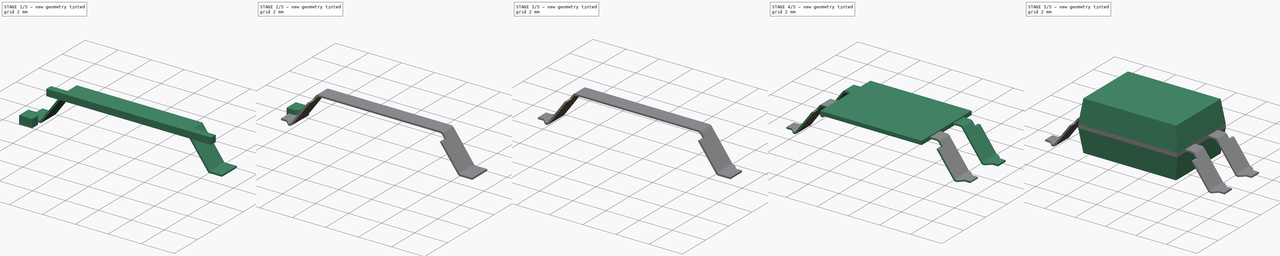
[diagram: build sequence overview — one tinted view per stage of 5, left to right]
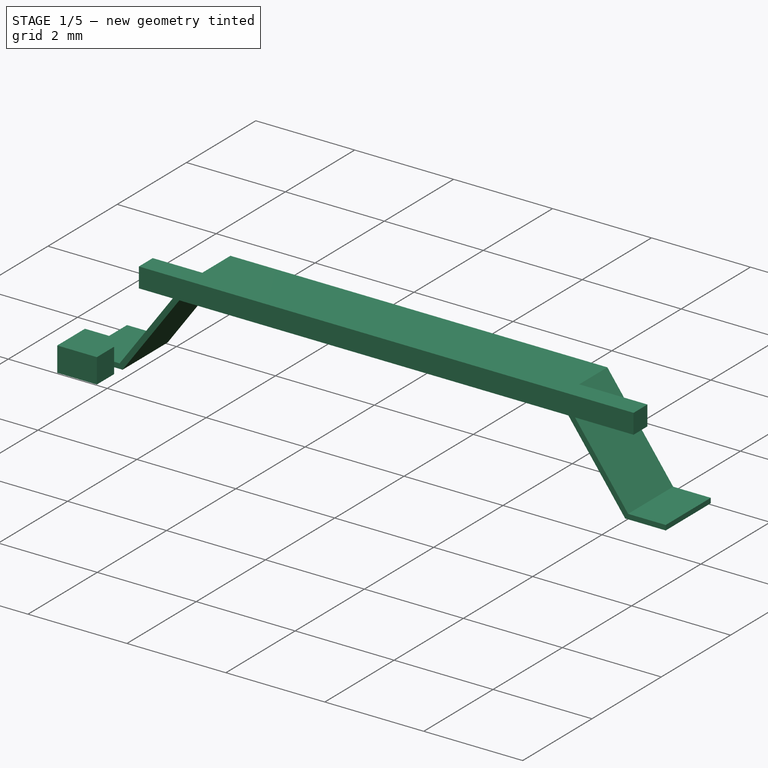
[diagram: stage 1 of 5 — iso view after this stage's code; geometry added in this stage tinted green]
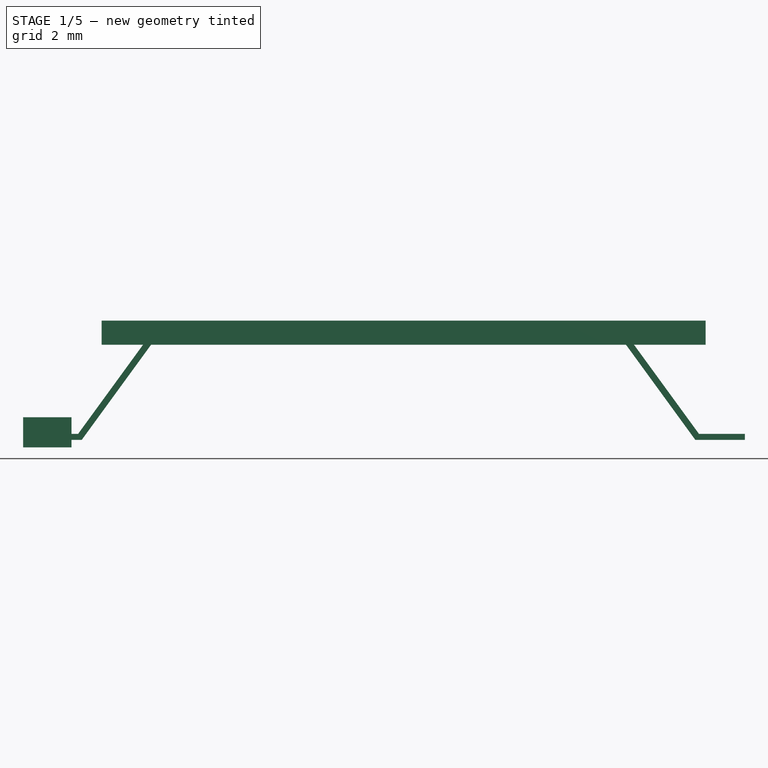
[diagram: stage 1 of 5 — front view after this stage's code; geometry added in this stage tinted green]
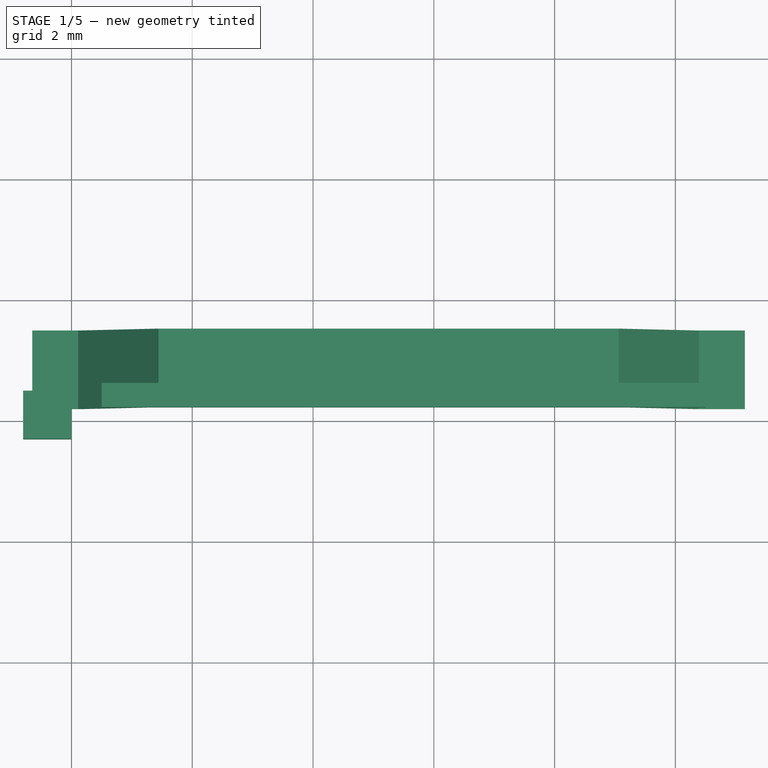
[diagram: stage 1 of 5 — top view after this stage's code; geometry added in this stage tinted green]
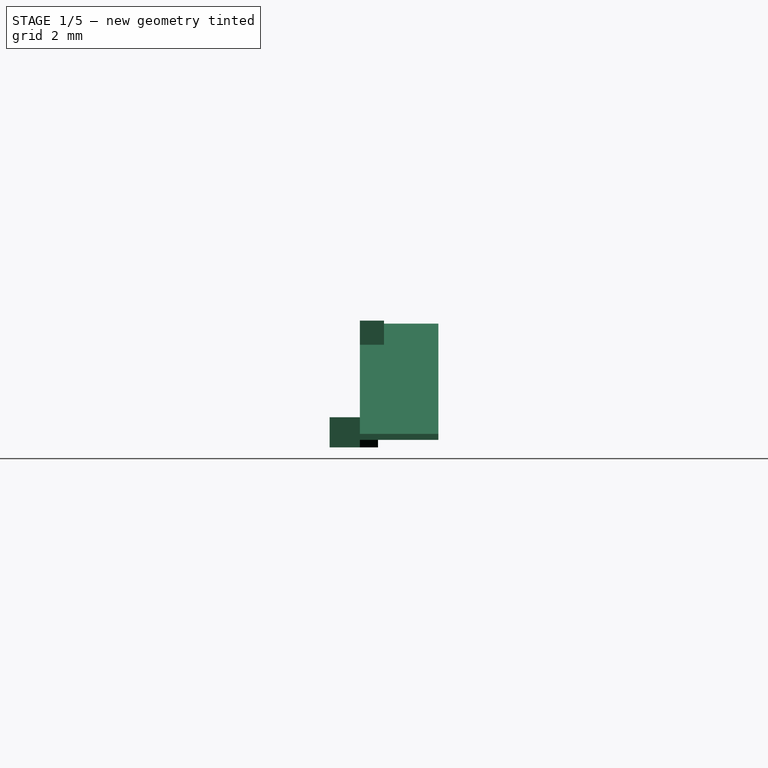
[diagram: stage 1 of 5 — right view after this stage's code; geometry added in this stage tinted green]
FCSTD DOCUMENT  (FreeCAD 0.18.4R)
Label: Wurth-140816144100
License: All rights reserved
LicenseURL: http://en.wikipedia.org/wiki/All_rights_reserved
objects: Part::Cut×6, Part::Mirroring×4, Sketcher::SketchObject×3, Part::Extrusion×2, Part::MultiFuse×2, Part::Box×2, Part::Loft×1, Part::Fillet×1, Part::Chamfer×1
note: 22 computed .brp shape members not serialized (recipe doc carries the construction recipe); baked Part::Feature solids carry a one-line shape summary decoded from their .brp

FEATURE [Sketcher::SketchObject] Sketch002
  Placement = pos=(0,0.2,0) rot=(1,0,0;1.5708rad)
  sketch-geometry (12):
    g0: LineSegment StartX=-2.65 StartY=-1.875 StartZ=0 EndX=-1.83 EndY=-1.875 EndZ=0
    g1: LineSegment StartX=-1.83 StartY=-1.875 StartZ=0 EndX=-0.5 EndY=-0.05 EndZ=0
    g2: LineSegment StartX=-0.5 StartY=-0.05 StartZ=0 EndX=7 EndY=-0.05 EndZ=0
    g3: LineSegment StartX=7 StartY=-0.05 StartZ=0 EndX=8.33 EndY=-1.875 EndZ=0
    g4: LineSegment StartX=8.33 StartY=-1.875 StartZ=0 EndX=9.15 EndY=-1.875 EndZ=0
    g5: LineSegment StartX=9.15 StartY=-1.875 StartZ=0 EndX=9.15 EndY=-1.775 EndZ=0
    g6: LineSegment StartX=9.15 StartY=-1.775 StartZ=0 EndX=8.39 EndY=-1.775 EndZ=0
    g7: LineSegment StartX=8.39 StartY=-1.775 StartZ=0 EndX=7.06 EndY=0.05 EndZ=0
    g8: LineSegment StartX=7.06 StartY=0.05 StartZ=0 EndX=-0.56 EndY=0.05 EndZ=0
    g9: LineSegment StartX=-0.56 StartY=0.05 StartZ=0 EndX=-1.89 EndY=-1.775 EndZ=0
    g10: LineSegment StartX=-1.89 StartY=-1.775 StartZ=0 EndX=-2.65 EndY=-1.775 EndZ=0
    g11: LineSegment StartX=-2.65 StartY=-1.775 StartZ=0 EndX=-2.65 EndY=-1.875 EndZ=0
  constraints (32):
    c: Coincident(g0,g1)
    c: Coincident(g1,g2)
    c: Coincident(g2,g3)
    c: Coincident(g3,g4)
    c: Coincident(g4,g5)
    c: Coincident(g5,g6)
    c: Coincident(g6,g7)
    c: Coincident(g7,g8)
    c: Coincident(g8,g9)
    c: Coincident(g9,g10)
    c: Coincident(g10,g11)
    c: Coincident(g11,g0)
    c: Vertical(g11)
    c: Horizontal(g6)
    c: Horizontal(g4)
    c: Horizontal(g8)
    c: Horizontal(g10)
    c: Horizontal(g0)
    c: DistanceX(g8,g8) = 7.62
    c: Parallel(g9,g1)
    c: Parallel(g3,g7)
    c: DistanceY(g5,g5) = 0.1
    c: DistanceY(g11,g11) = 0.1
    c: DistanceY(g3,g0) = 0
    c: DistanceX(g0,g4) = 11.8
    c: DistanceX(g8,g-1) = 0.56
    c: Equal(g6,g10)
    c: Equal(g0,g4)
    c: DistanceY(g1,g8) = 0.1
    c: Vertical(g5)
    c: DistanceX(g0,g3) = 10.16
    c: DistanceX(g9,g0) = 0.06
FEATURE [Part::Extrusion] Extrude001
  Base = -> Sketch002
  Dir = (0,-1,-2e-16)
  DirMode = 2
  FaceMakerClass = Part::FaceMakerBullseye
  LengthFwd = 1.3
  LengthRev = 0
  Placement = pos=(0,1.3,0) rot=(0,0,1;0rad)
  Solid = true
  Symmetric = false
FEATURE [Part::Box] Box  label="Cube"
  AttacherType = Attacher::AttachEngine3D
  Height = 0.4
  Length = 10
  Placement = pos=(-1.5,0.2,-0.3) rot=(0,0,1;0rad)
  Width = 0.4
FEATURE [Part::Box] Box001  label="Cube001"
  AttacherType = Attacher::AttachEngine3D
  Height = 0.5
  Length = 0.8
  Placement = pos=(-2.9,-0.2,-2) rot=(0,0,1;0rad)
  Width = 0.8
FEATURE [Part::Chamfer] Chamfer
  Base = -> Box001
  Edges = 1 edges r=0.3: [Edge7]
  Placement = pos=(0.1,-0.1,0) rot=(0,0,1;0rad)
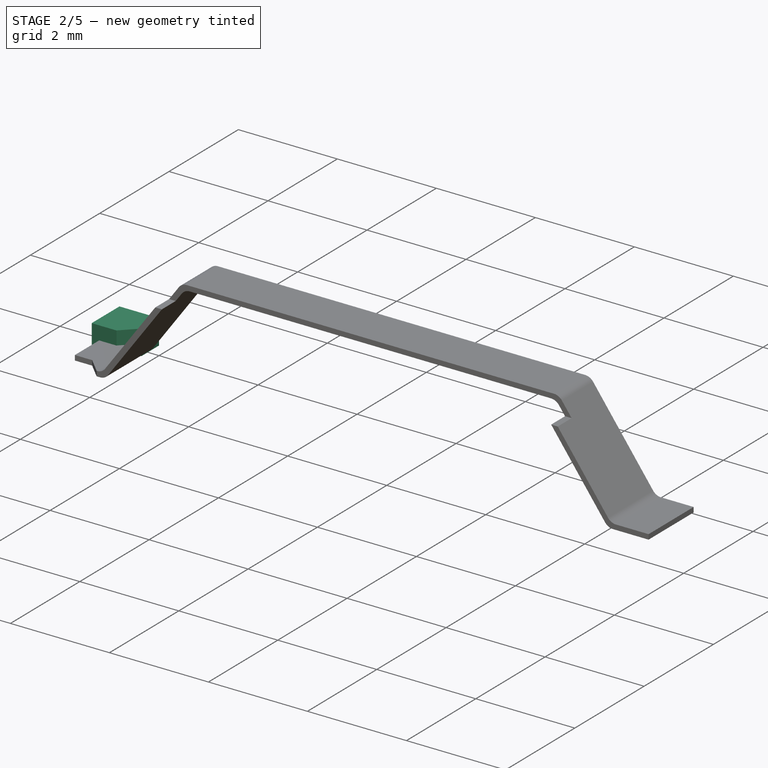
[diagram: stage 2 of 5 — iso view after this stage's code; geometry added in this stage tinted green]
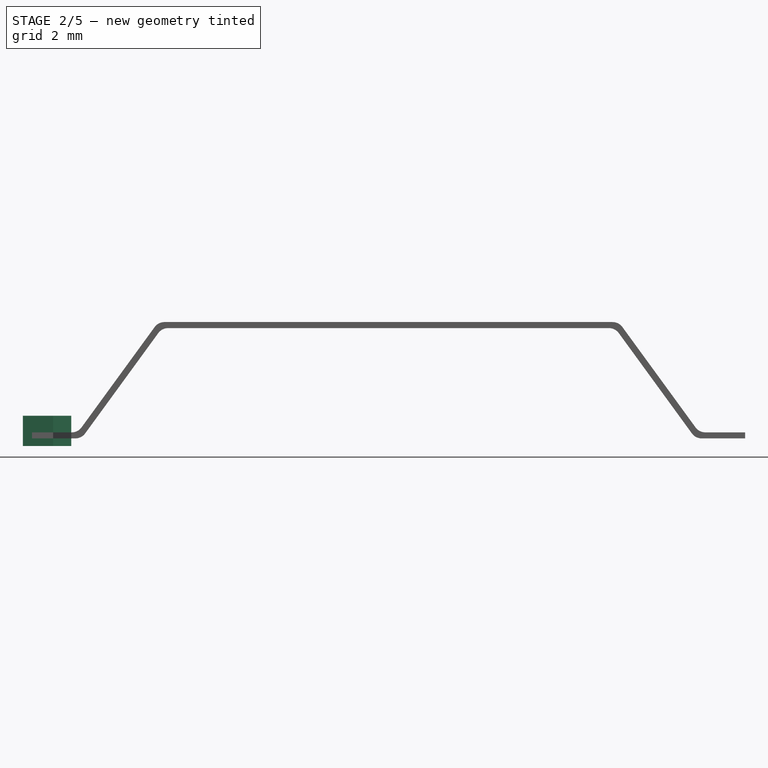
[diagram: stage 2 of 5 — front view after this stage's code; geometry added in this stage tinted green]
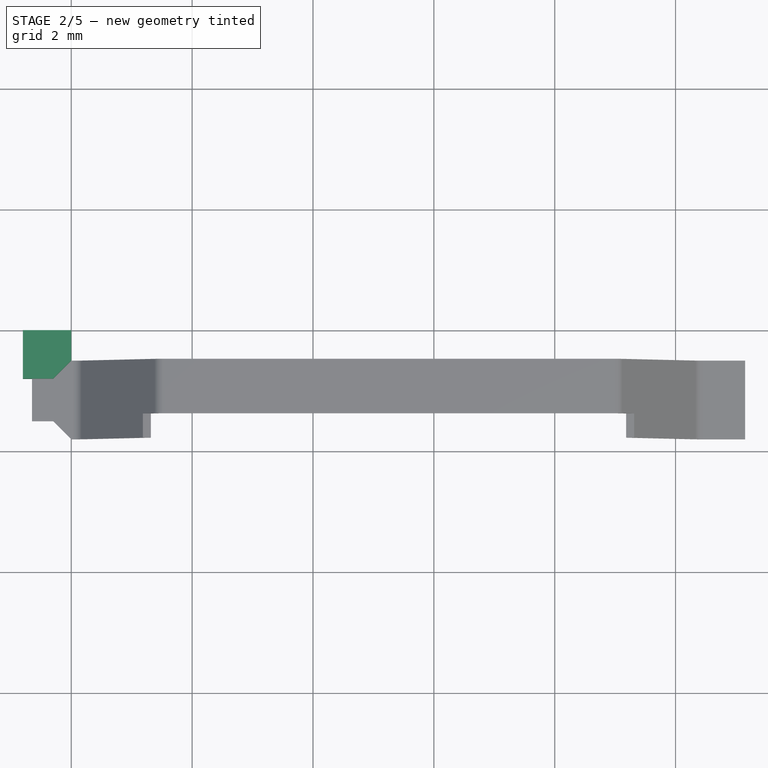
[diagram: stage 2 of 5 — top view after this stage's code; geometry added in this stage tinted green]
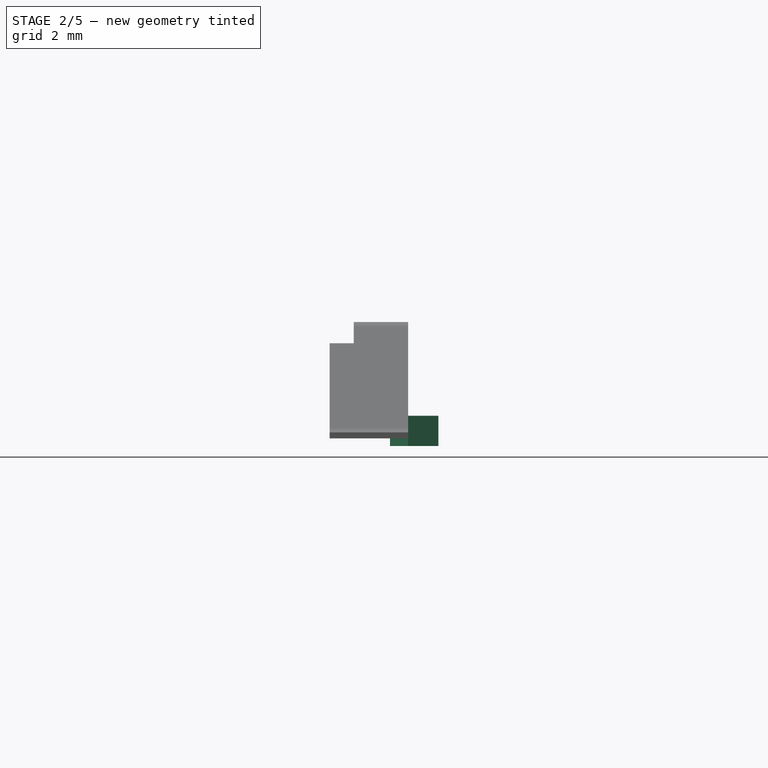
[diagram: stage 2 of 5 — right view after this stage's code; geometry added in this stage tinted green]
FEATURE [Part::Fillet] Fillet
  Base = -> Extrude001
  Edges = 8 edges r=0.2: [Edge2,Edge5,Edge8,Edge11,Edge20,Edge23,Edge26,Edge29]
FEATURE [Part::Cut] Cut
  Base = -> Fillet
  Tool = -> Box
FEATURE [Part::Mirroring] Part__Mirroring001  label="Chamfer (Mirror #2)"
  Base = (0,0.85,0)
  Normal = (0,1,0)
  Source = -> Chamfer
FEATURE [Part::Cut] Cut001
  Base = -> Cut
  Tool = -> Chamfer
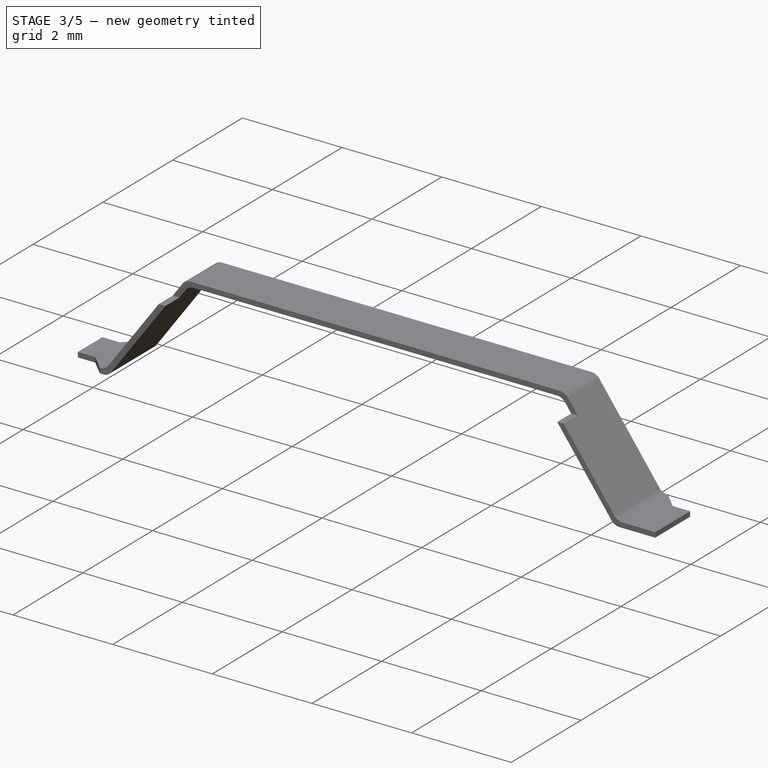
[diagram: stage 3 of 5 — iso view after this stage's code; geometry added in this stage tinted green]
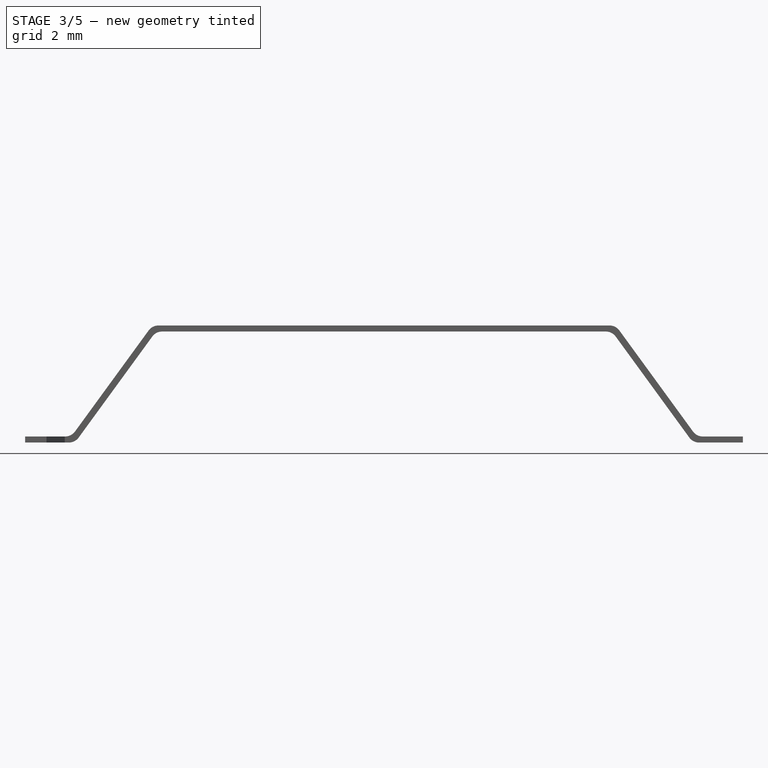
[diagram: stage 3 of 5 — front view after this stage's code; geometry added in this stage tinted green]
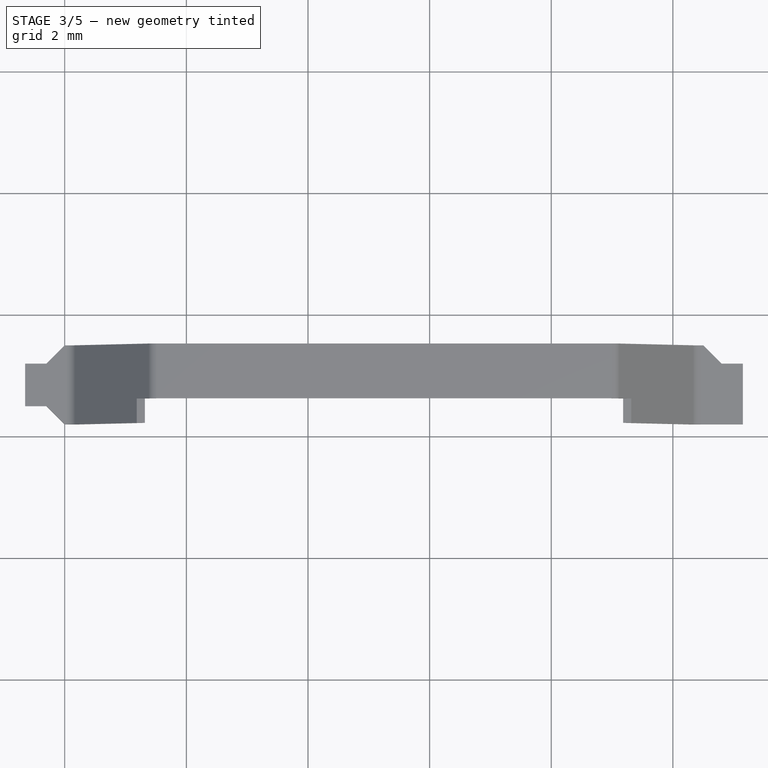
[diagram: stage 3 of 5 — top view after this stage's code; geometry added in this stage tinted green]
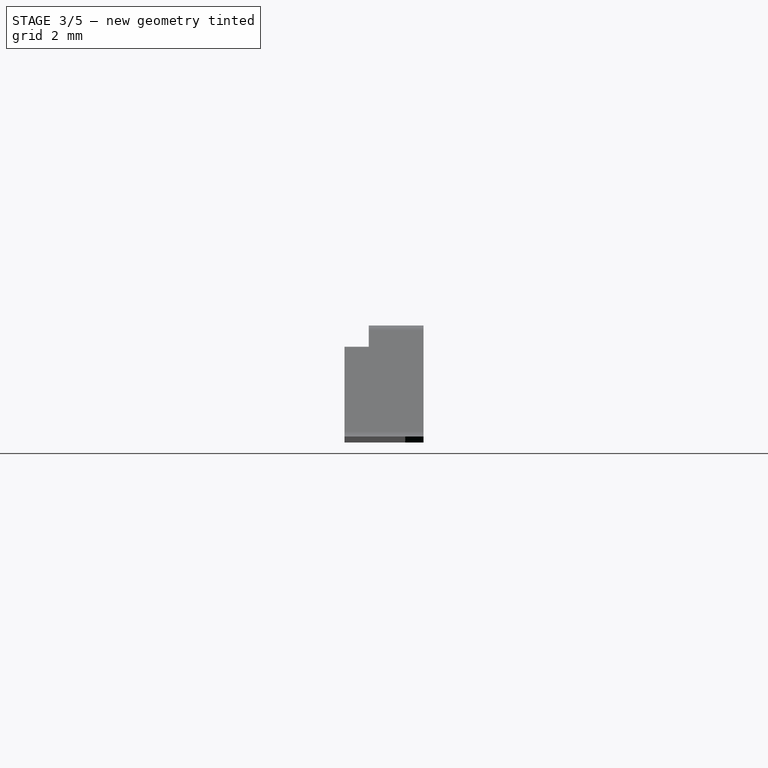
[diagram: stage 3 of 5 — right view after this stage's code; geometry added in this stage tinted green]
FEATURE [Part::Mirroring] Part__Mirroring002  label="Chamfer (Mirror #3)"
  Base = (3.25,0,0)
  Normal = (1,0,0)
  Source = -> Part__Mirroring001
FEATURE [Part::Cut] Cut002
  Base = -> Cut001
  Tool = -> Part__Mirroring001
FEATURE [Part::Cut] Cut003
  Base = -> Cut002
  Tool = -> Part__Mirroring002
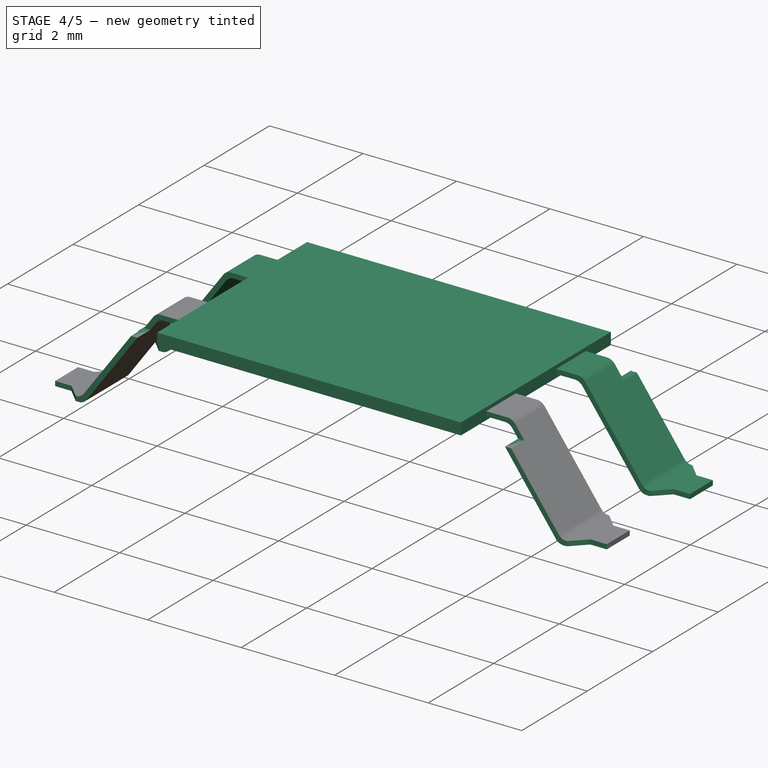
[diagram: stage 4 of 5 — iso view after this stage's code; geometry added in this stage tinted green]
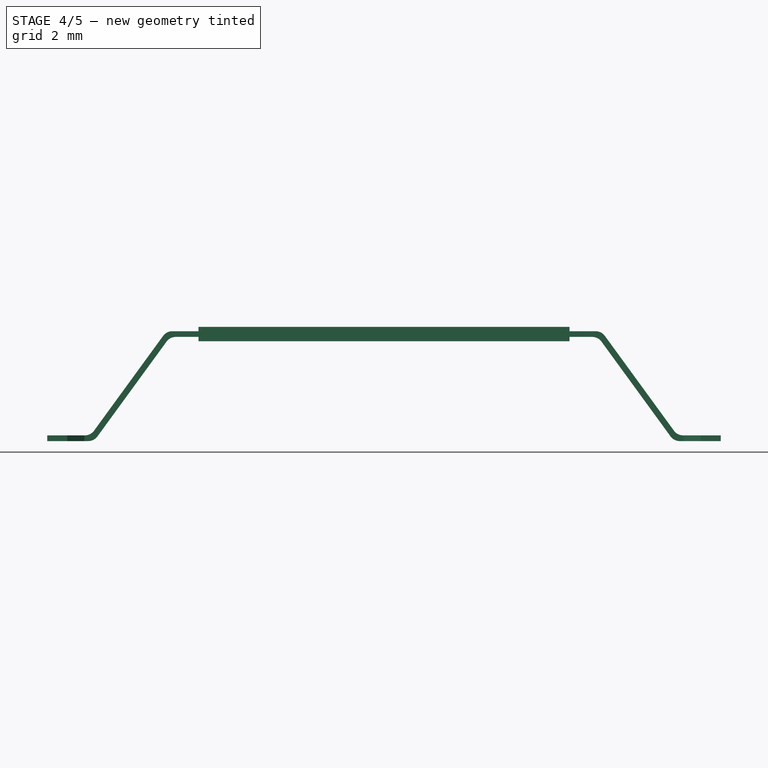
[diagram: stage 4 of 5 — front view after this stage's code; geometry added in this stage tinted green]
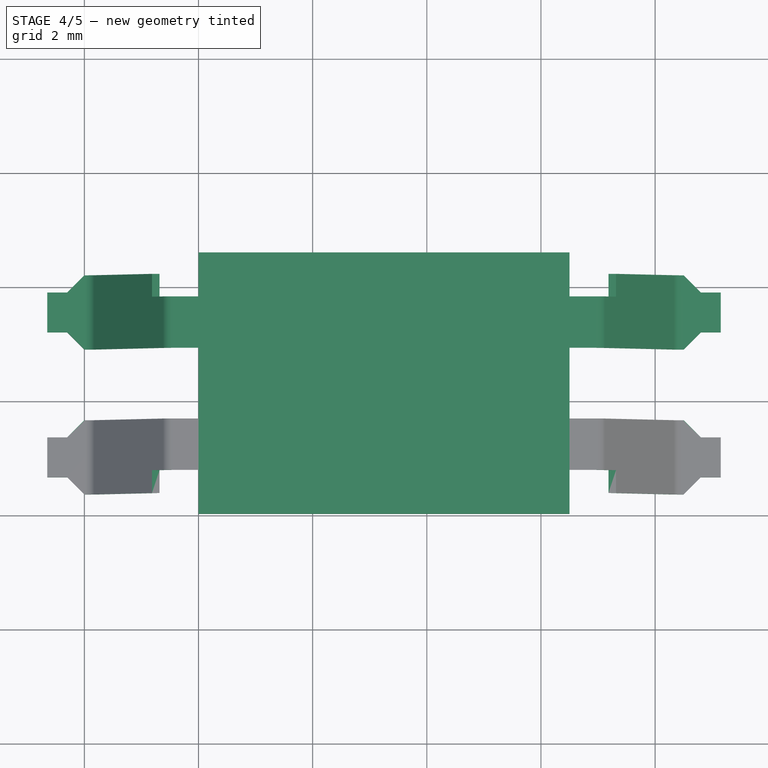
[diagram: stage 4 of 5 — top view after this stage's code; geometry added in this stage tinted green]
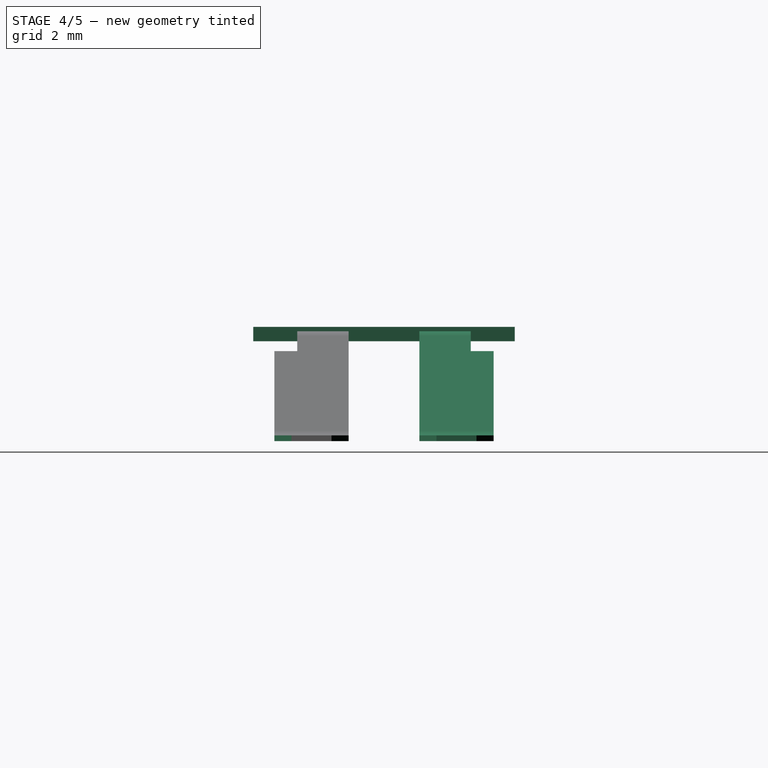
[diagram: stage 4 of 5 — right view after this stage's code; geometry added in this stage tinted green]
FEATURE [Part::Extrusion] Extrude
  Base = -> Sketch
  Dir = (0,0,1)
  DirMode = 2
  FaceMakerClass = Part::FaceMakerBullseye
  LengthFwd = -0.25
  LengthRev = 0
  Solid = true
  Symmetric = false
FEATURE [Part::Mirroring] Part__Mirroring003  label="Chamfer (Mirror #4)"
  Base = (0,0.85,0)
  Normal = (0,1,0)
  Source = -> Part__Mirroring002
FEATURE [Part::Cut] Cut004  label="Legs001"
  Base = -> Cut003
  Placement = pos=(0,0.17,0) rot=(0,0,1;0rad)
  Tool = -> Part__Mirroring003
FEATURE [Part::Cut] Cut005  label="Legs002"
  Base = -> Cut003
  Placement = pos=(6.5,4.41,0) rot=(0,0,1;3.14159rad)
  Tool = -> Part__Mirroring003
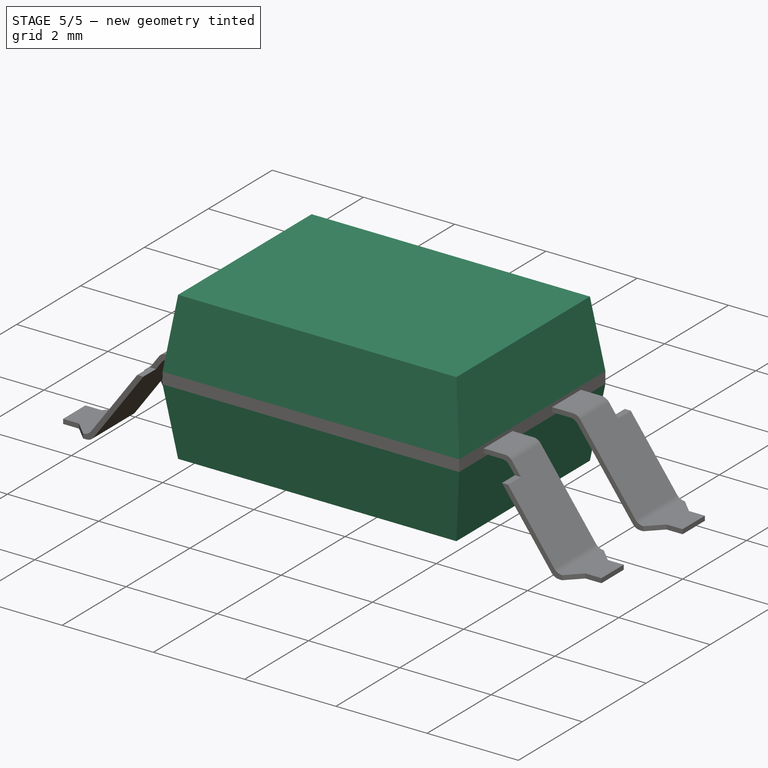
[diagram: stage 5 of 5 — iso view after this stage's code; geometry added in this stage tinted green]
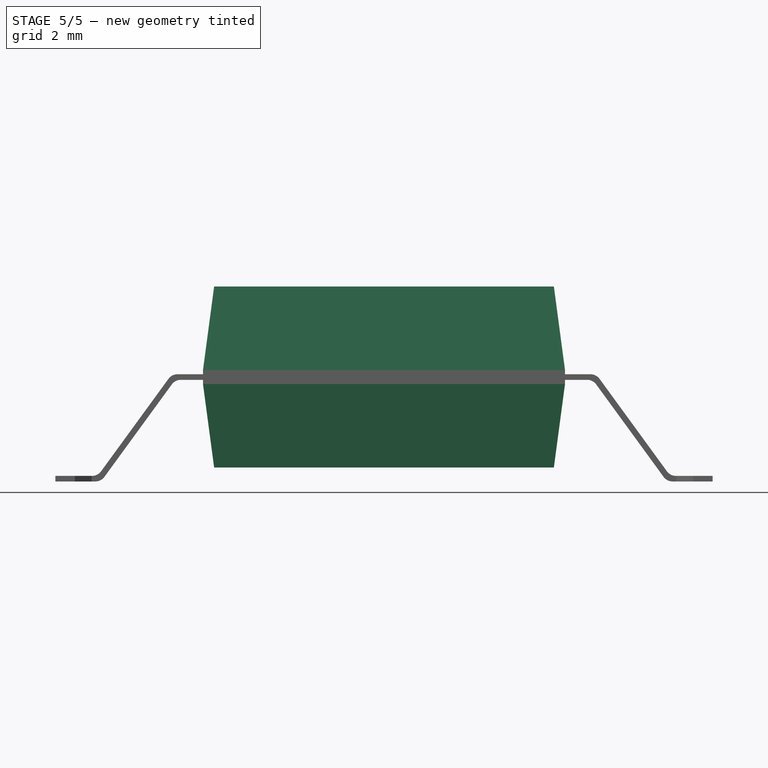
[diagram: stage 5 of 5 — front view after this stage's code; geometry added in this stage tinted green]
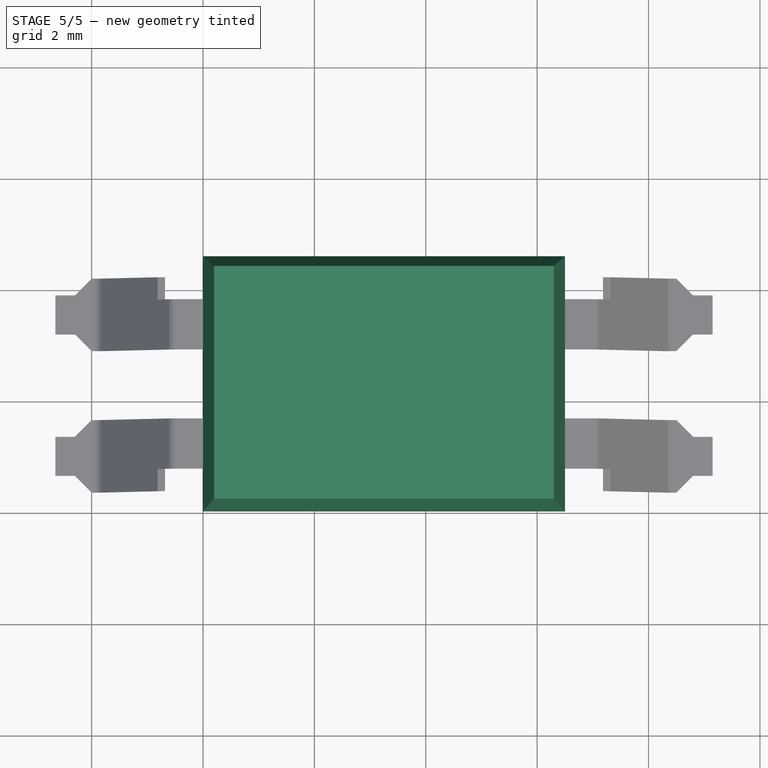
[diagram: stage 5 of 5 — top view after this stage's code; geometry added in this stage tinted green]
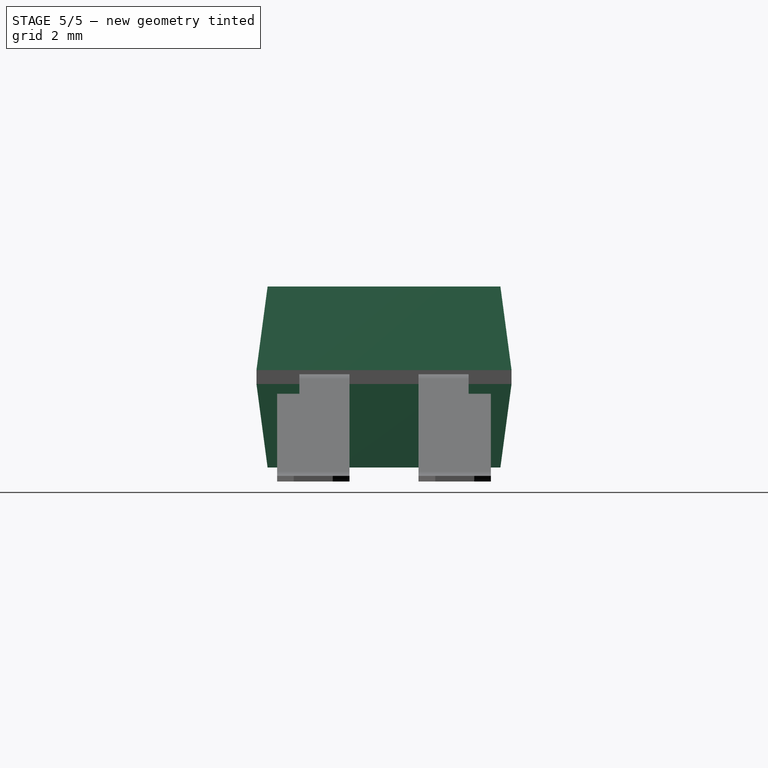
[diagram: stage 5 of 5 — right view after this stage's code; geometry added in this stage tinted green]
FEATURE [Sketcher::SketchObject] Sketch
  Placement = pos=(0,0,0.125) rot=(0,0,1;0rad)
  sketch-geometry (4):
    g0: LineSegment StartX=0 StartY=0 StartZ=0 EndX=6.5 EndY=0 EndZ=0
    g1: LineSegment StartX=6.5 StartY=0 StartZ=0 EndX=6.5 EndY=4.58 EndZ=0
    g2: LineSegment StartX=6.5 StartY=4.58 StartZ=0 EndX=0 EndY=4.58 EndZ=0
    g3: LineSegment StartX=0 StartY=4.58 StartZ=0 EndX=0 EndY=0 EndZ=0
  constraints (12):
    c: Coincident(g0,g1)
    c: Coincident(g1,g2)
    c: Coincident(g2,g3)
    c: Coincident(g3,g0)
    c: Horizontal(g0)
    c: Horizontal(g2)
    c: Vertical(g1)
    c: Vertical(g3)
    c: DistanceY(g0,g2) = 4.58
    c: DistanceX(g-1,g0) = 6.5
    c: DistanceX(g0) = 0
    c: DistanceY(g0) = 0
FEATURE [Sketcher::SketchObject] Sketch001
  Placement = pos=(0,0,1.625) rot=(0,0,1;0rad)
  sketch-geometry (4):
    g0: LineSegment StartX=0.2 StartY=0.2 StartZ=0 EndX=6.3 EndY=0.2 EndZ=0
    g1: LineSegment StartX=6.3 StartY=0.2 StartZ=0 EndX=6.3 EndY=4.38 EndZ=0
    g2: LineSegment StartX=6.3 StartY=4.38 StartZ=0 EndX=0.2 EndY=4.38 EndZ=0
    g3: LineSegment StartX=0.2 StartY=4.38 StartZ=0 EndX=0.2 EndY=0.2 EndZ=0
  constraints (12):
    c: Coincident(g0,g1)
    c: Coincident(g1,g2)
    c: Coincident(g2,g3)
    c: Coincident(g3,g0)
    c: Horizontal(g0)
    c: Horizontal(g2)
    c: Vertical(g1)
    c: Vertical(g3)
    c: DistanceY(g3,g3) = 4.18
    c: DistanceX(g0,g0) = 6.1
    c: DistanceX(g0) = 0.2
    c: DistanceY(g0) = 0.2
FEATURE [Part::Loft] Loft
  Closed = false
  MaxDegree = 5
  Ruled = false
  Sections = -> [Sketch,Sketch001]
  Solid = true
FEATURE [Part::Mirroring] Part__Mirroring  label="Loft (Mirror #1)"
  Base = (3.25,2.29,0)
  Normal = (0,0,1)
  Source = -> Loft
FEATURE [Part::MultiFuse] Fusion  label="Body"
  Shapes = -> [Loft,Extrude,Part__Mirroring]
FEATURE [Part::MultiFuse] Fusion001  label="WE-140816144100"
  Shapes = -> [Fusion,Cut004,Cut005]
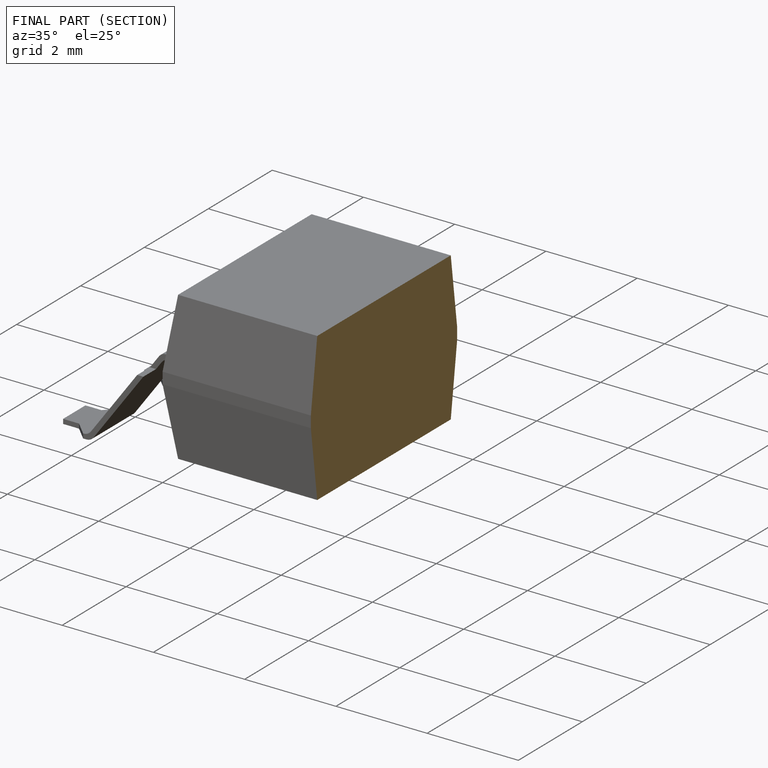
[diagram: finished part — half-section view (interior)]
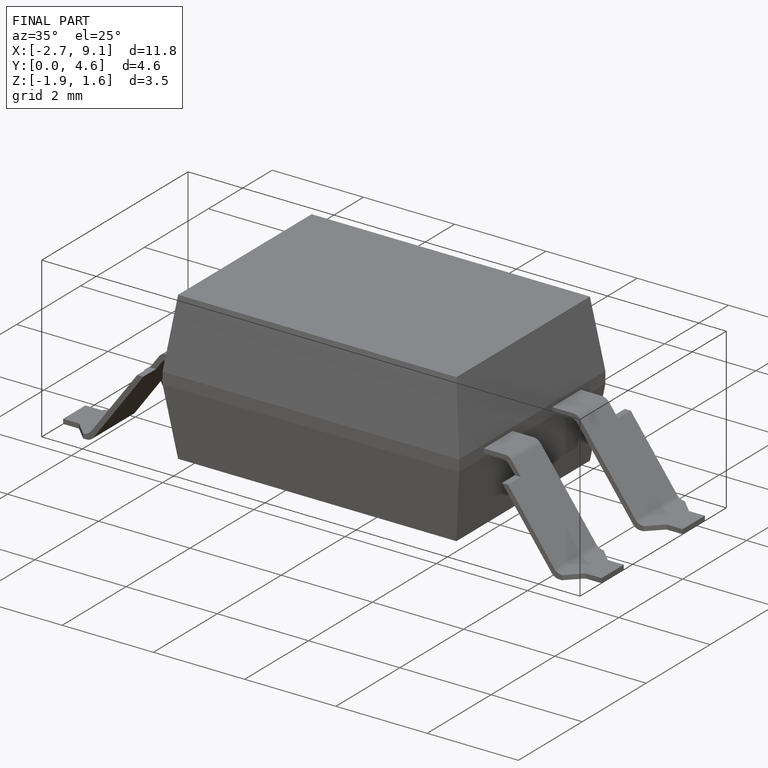
[diagram: finished part — iso view with bounding-box wireframe]
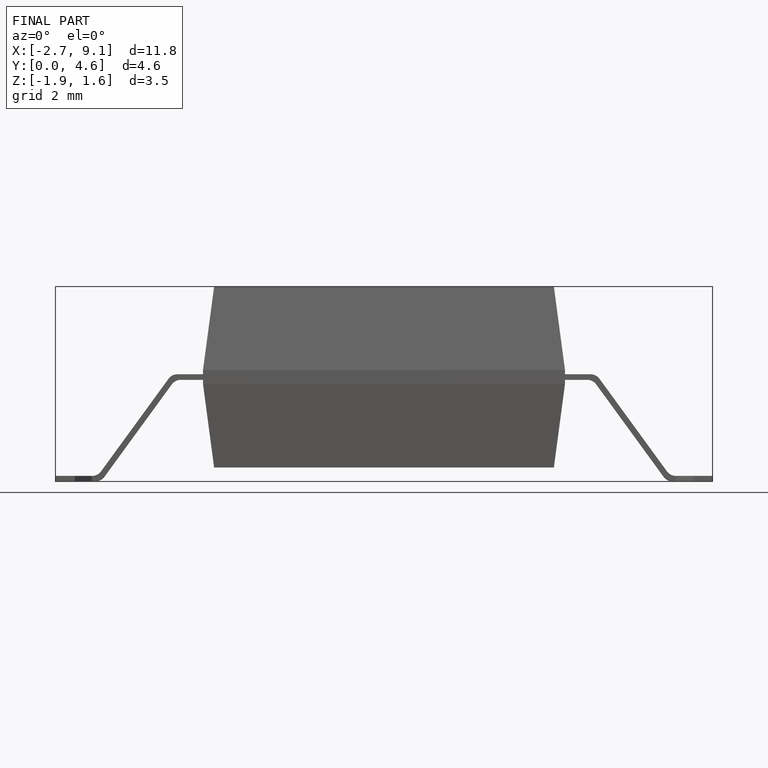
[diagram: finished part — front view with bounding-box wireframe]
